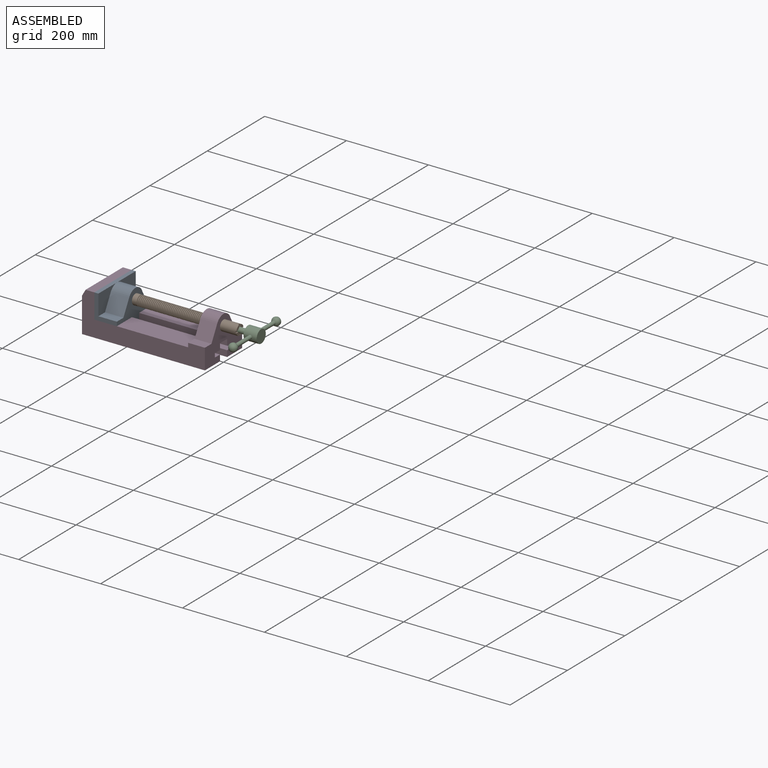
[diagram: assembled view]
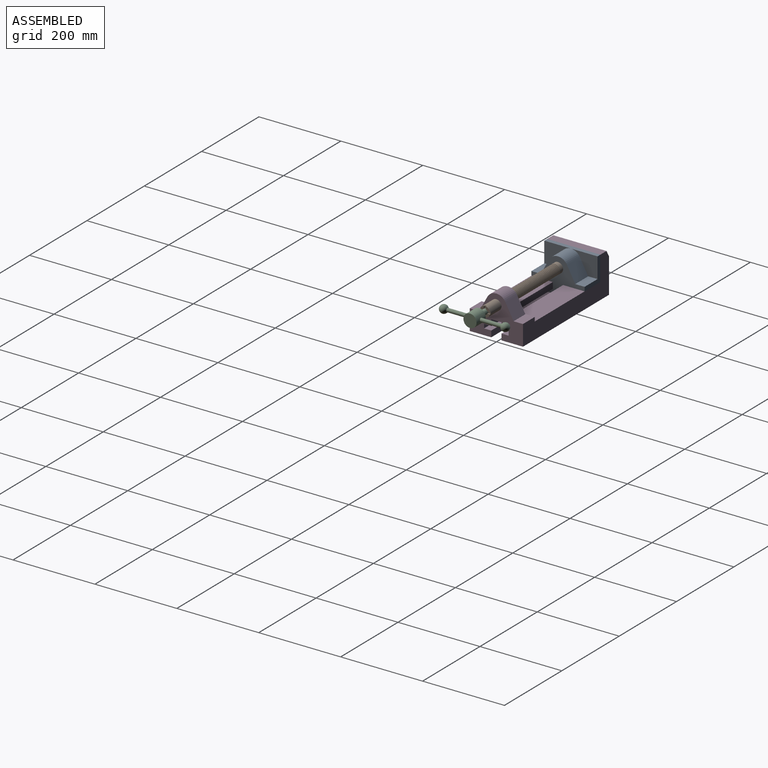
[diagram: assembled view, second angle]
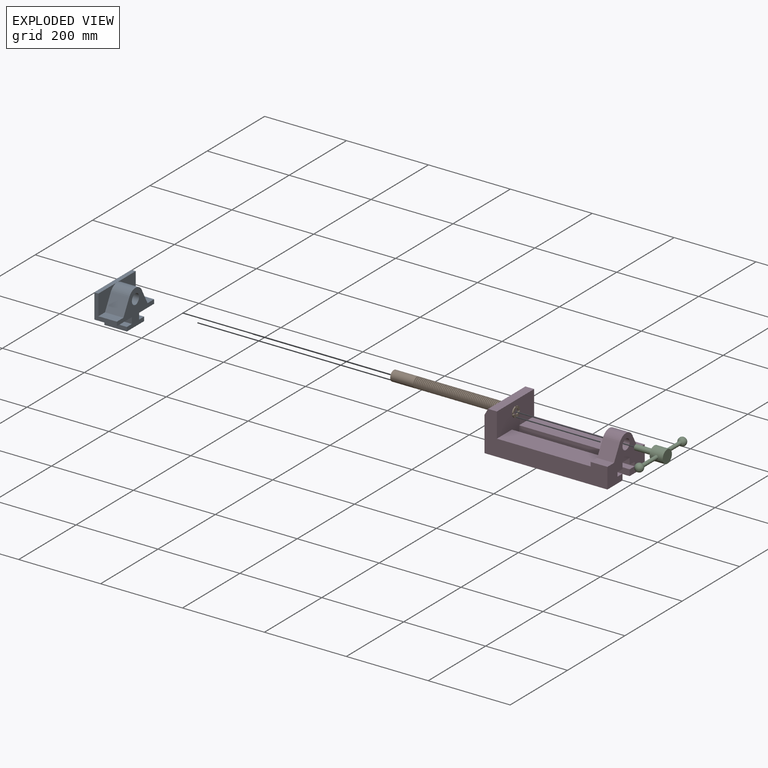
[diagram: exploded view]
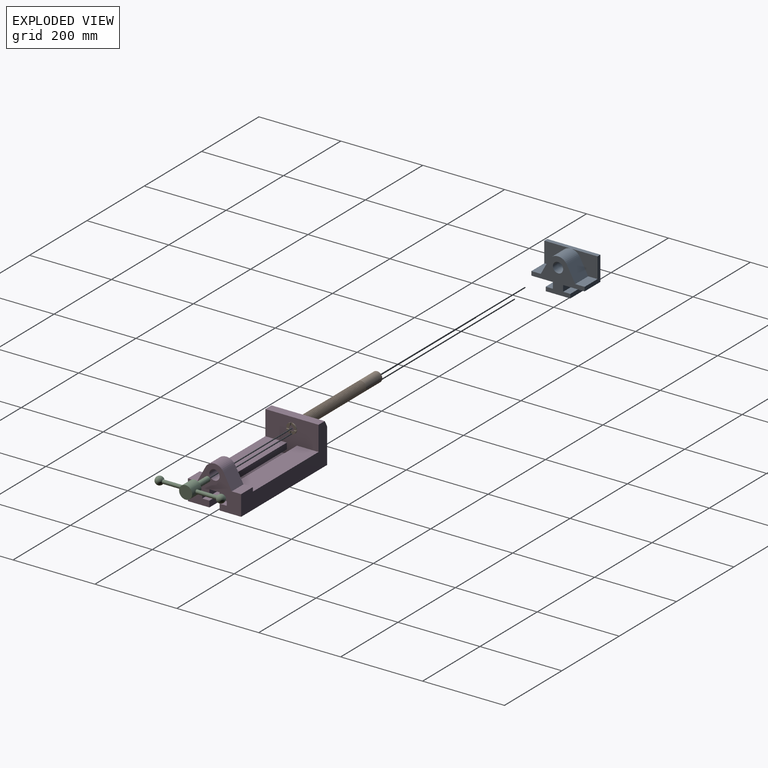
[diagram: exploded view, second angle]
ASSEMBLY  parts=4 mates=3
PART A: 23 faces, bbox 55x130x85 mm
  f0: plane 55x52.5mm, normal (0,0,-1), area 2887.5mm2, adj f4,f5,f10,f22
  f1: plane 45x22.94mm, normal (0,0,1), area 1032.3mm2, adj f2,f5,f7,f13
  f2: plane 65x50mm, normal (1,0,0), area 1863.3mm2, adj f1,f7,f9,f12,f13
  f3: plane 65x50mm, normal (1,0,0), area 1863.3mm2, adj f4,f6,f9,f11,f12
  f4: plane 60x55mm, normal (0,1,0), area 1050mm2, adj f0,f3,f5,f6,f9,f10
  f5: plane 130x85mm, normal (1,0,0), area 4557.5mm2, adj f0,f1,f4,f6,f7,f8,f11,f12
  f6: plane 45x22.94mm, normal (0,0,1), area 1032.3mm2, adj f3,f4,f5,f11
  f7: plane 60x55mm, normal (0,-1,0), area 1050mm2, adj f1,f2,f5,f8,f9,f10
  f8: plane 55x52.5mm, normal (0,0,-1), area 2887.5mm2, adj f5,f7,f10,f16
  f9: plane 130x10mm, normal (0,0,1), area 1300mm2, adj f2,f3,f4,f7,f10
  f10: plane 130x85mm, normal (-1,0,0), area 8775mm2, adj f0,f4,f7,f8,f9,f16,f17,f18
  f11: plane 45x36.95mm, normal (0,0.88,0.48), area 1892.7mm2, adj f3,f5,f6,f12
  f12: cylinder r=25mm len=45mm, axis (1,0,0), area 2413.3mm2, adj f2,f3,f5,f11,f13
  f13: plane 45x36.95mm, normal (0,-0.88,0.48), area 1892.7mm2, adj f1,f2,f5,f12
  f14: cylinder r=12.5mm len=45mm, axis (1,0,0), area 3534.3mm2, adj f5,f15
  f15: plane 25x25mm, normal (1,0,0), area 490.9mm2, adj f14
  f16: plane 55x15mm, normal (0,-1,0), area 825mm2, adj f5,f8,f10,f17
  f17: plane 55x17.5mm, normal (0,0,1), area 962.5mm2, adj f5,f10,f16,f18
  f18: plane 55x10mm, normal (0,-1,0), area 550mm2, adj f5,f10,f17,f19
  f19: plane 60x55mm, normal (0,0,-1), area 3300mm2, adj f5,f10,f18,f20
  f20: plane 55x10mm, normal (0,1,0), area 550mm2, adj f5,f10,f19,f21
  f21: plane 55x17.5mm, normal (0,0,1), area 962.5mm2, adj f5,f10,f20,f22
  f22: plane 55x15mm, normal (0,1,0), area 825mm2, adj f0,f5,f10,f21
PART B: 220 faces, bbox 300x25x25 mm
  f0: plane 9.75x9.75mm, normal (1,0,0), area 59.1mm2, adj f7,f210,f211,f218
  f1: plane 9.75x9.75mm, normal (1,0,0), area 59.1mm2, adj f7,f212,f213,f218
  f2: plane 9.75x9.75mm, normal (1,0,0), area 59.1mm2, adj f7,f214,f215,f218
  f3: plane 9.75x9.75mm, normal (1,0,0), area 59.1mm2, adj f7,f216,f217,f218
  f4: plane 6.5x5mm, normal (1,0,0), area 30.4mm2, adj f7,f210,f217,f218
  f5: plane 6.5x5mm, normal (1,0,0), area 30.4mm2, adj f7,f211,f212,f218
  f6: plane 6.5x5mm, normal (1,0,0), area 30.4mm2, adj f7,f213,f214,f218
  f7: cylinder r=12.5mm len=40mm, axis (-1,0,0), area 3091.3mm2, adj f0,f1,f2,f3,f4,f5,f6,f59
  f8: cylinder r=12.5mm len=25mm, axis (-1,0,0), area 125.7mm2, adj f201,f206
  f9: cylinder r=12.5mm len=25mm, axis (-1,0,0), area 125.7mm2, adj f198,f203
  f10: cylinder r=12.5mm len=25mm, axis (-1,0,0), area 125.7mm2, adj f195,f200
  f11: cylinder r=12.5mm len=25mm, axis (-1,0,0), area 125.7mm2, adj f192,f197
  f12: cylinder r=12.5mm len=25mm, axis (-1,0,0), area 125.7mm2, adj f189,f194
  f13: cylinder r=12.5mm len=25mm, axis (-1,0,0), area 125.7mm2, adj f186,f191
  f14: cylinder r=12.5mm len=25mm, axis (-1,0,0), area 125.7mm2, adj f183,f188
  f15: cylinder r=12.5mm len=25mm, axis (-1,0,0), area 125.7mm2, adj f180,f185
  f16: cylinder r=12.5mm len=25mm, axis (-1,0,0), area 125.7mm2, adj f177,f182
  f17: cylinder r=12.5mm len=25mm, axis (-1,0,0), area 125.7mm2, adj f174,f179
  f18: cylinder r=12.5mm len=25mm, axis (-1,0,0), area 125.7mm2, adj f171,f176
  f19: cylinder r=12.5mm len=25mm, axis (-1,0,0), area 125.7mm2, adj f168,f173
  f20: cylinder r=12.5mm len=25mm, axis (-1,0,0), area 125.7mm2, adj f165,f170
  f21: cylinder r=12.5mm len=25mm, axis (-1,0,0), area 125.7mm2, adj f162,f167
  f22: cylinder r=12.5mm len=25mm, axis (-1,0,0), area 125.7mm2, adj f159,f164
  f23: cylinder r=12.5mm len=25mm, axis (-1,0,0), area 125.7mm2, adj f156,f161
  f24: cylinder r=12.5mm len=25mm, axis (-1,0,0), area 125.7mm2, adj f153,f158
  f25: cylinder r=12.5mm len=25mm, axis (-1,0,0), area 125.7mm2, adj f150,f155
  f26: cylinder r=12.5mm len=25mm, axis (-1,0,0), area 125.7mm2, adj f147,f152
  f27: cylinder r=12.5mm len=25mm, axis (-1,0,0), area 125.7mm2, adj f144,f149
  f28: cylinder r=12.5mm len=25mm, axis (-1,0,0), area 125.7mm2, adj f141,f146
  f29: cylinder r=12.5mm len=25mm, axis (-1,0,0), area 125.7mm2, adj f138,f143
  f30: cylinder r=12.5mm len=25mm, axis (-1,0,0), area 125.7mm2, adj f135,f140
  f31: cylinder r=12.5mm len=25mm, axis (-1,0,0), area 125.7mm2, adj f132,f137
  f32: cylinder r=12.5mm len=25mm, axis (-1,0,0), area 125.7mm2, adj f129,f134
  f33: cylinder r=12.5mm len=25mm, axis (-1,0,0), area 125.7mm2, adj f126,f131
  f34: cylinder r=12.5mm len=25mm, axis (-1,0,0), area 125.7mm2, adj f123,f128
  f35: cylinder r=12.5mm len=25mm, axis (-1,0,0), area 125.7mm2, adj f120,f125
  f36: cylinder r=12.5mm len=25mm, axis (-1,0,0), area 125.7mm2, adj f117,f122
  f37: cylinder r=12.5mm len=25mm, axis (-1,0,0), area 125.7mm2, adj f114,f119
  f38: cylinder r=12.5mm len=25mm, axis (-1,0,0), area 125.7mm2, adj f111,f116
  f39: cylinder r=12.5mm len=25mm, axis (-1,0,0), area 125.7mm2, adj f108,f113
  f40: cylinder r=12.5mm len=25mm, axis (-1,0,0), area 125.7mm2, adj f105,f110
  f41: cylinder r=12.5mm len=25mm, axis (-1,0,0), area 125.7mm2, adj f102,f107
  f42: cylinder r=12.5mm len=25mm, axis (-1,0,0), area 125.7mm2, adj f99,f104
  f43: cylinder r=12.5mm len=25mm, axis (-1,0,0), area 125.7mm2, adj f96,f101
  f44: cylinder r=12.5mm len=25mm, axis (-1,0,0), area 125.7mm2, adj f93,f98
  f45: cylinder r=12.5mm len=25mm, axis (-1,0,0), area 125.7mm2, adj f90,f95
  f46: cylinder r=12.5mm len=25mm, axis (-1,0,0), area 125.7mm2, adj f87,f92
  f47: cylinder r=12.5mm len=25mm, axis (-1,0,0), area 125.7mm2, adj f84,f89
  f48: cylinder r=12.5mm len=25mm, axis (-1,0,0), area 125.7mm2, adj f81,f86
  f49: cylinder r=12.5mm len=25mm, axis (-1,0,0), area 125.7mm2, adj f78,f83
  f50: cylinder r=12.5mm len=25mm, axis (-1,0,0), area 125.7mm2, adj f75,f80
  f51: cylinder r=12.5mm len=25mm, axis (-1,0,0), area 125.7mm2, adj f72,f77
  f52: cylinder r=12.5mm len=25mm, axis (-1,0,0), area 125.7mm2, adj f69,f74
  f53: cylinder r=12.5mm len=25mm, axis (-1,0,0), area 125.7mm2, adj f66,f71
  f54: cylinder r=12.5mm len=25mm, axis (-1,0,0), area 125.7mm2, adj f63,f68
  f55: cylinder r=12.5mm len=25mm, axis (-1,0,0), area 125.7mm2, adj f60,f65
  f56: cylinder r=12.5mm len=25mm, axis (-1,0,0), area 125.7mm2, adj f57,f62
  f57: cone r=10mm half-angle=75.4deg, axis (-1,0,0), area 182.6mm2, adj f56,f58
  f58: cylinder r=10mm len=20mm, axis (-1,0,0), area 75.4mm2, adj f57,f59
  f59: cone r=12.5mm half-angle=75.4deg, axis (1,0,0), area 182.6mm2, adj f7,f58
  f60: cone r=10mm half-angle=75.4deg, axis (-1,0,0), area 182.6mm2, adj f55,f61
  f61: cylinder r=10mm len=20mm, axis (-1,0,0), area 75.4mm2, adj f60,f62
  f62: cone r=12.5mm half-angle=75.4deg, axis (1,0,0), area 182.6mm2, adj f56,f61
  f63: cone r=10mm half-angle=75.4deg, axis (-1,0,0), area 182.6mm2, adj f54,f64
  f64: cylinder r=10mm len=20mm, axis (-1,0,0), area 75.4mm2, adj f63,f65
  f65: cone r=12.5mm half-angle=75.4deg, axis (1,0,0), area 182.6mm2, adj f55,f64
  f66: cone r=10mm half-angle=75.4deg, axis (-1,0,0), area 182.6mm2, adj f53,f67
  f67: cylinder r=10mm len=20mm, axis (-1,0,0), area 75.4mm2, adj f66,f68
  f68: cone r=12.5mm half-angle=75.4deg, axis (1,0,0), area 182.6mm2, adj f54,f67
  f69: cone r=10mm half-angle=75.4deg, axis (-1,0,0), area 182.6mm2, adj f52,f70
  f70: cylinder r=10mm len=20mm, axis (-1,0,0), area 75.4mm2, adj f69,f71
  f71: cone r=12.5mm half-angle=75.4deg, axis (1,0,0), area 182.6mm2, adj f53,f70
  f72: cone r=10mm half-angle=75.4deg, axis (-1,0,0), area 182.6mm2, adj f51,f73
  f73: cylinder r=10mm len=20mm, axis (-1,0,0), area 75.4mm2, adj f72,f74
  f74: cone r=12.5mm half-angle=75.4deg, axis (1,0,0), area 182.6mm2, adj f52,f73
  f75: cone r=10mm half-angle=75.4deg, axis (-1,0,0), area 182.6mm2, adj f50,f76
  f76: cylinder r=10mm len=20mm, axis (-1,0,0), area 75.4mm2, adj f75,f77
  f77: cone r=12.5mm half-angle=75.4deg, axis (1,0,0), area 182.6mm2, adj f51,f76
  f78: cone r=10mm half-angle=75.4deg, axis (-1,0,0), area 182.6mm2, adj f49,f79
  f79: cylinder r=10mm len=20mm, axis (-1,0,0), area 75.4mm2, adj f78,f80
  f80: cone r=12.5mm half-angle=75.4deg, axis (1,0,0), area 182.6mm2, adj f50,f79
  f81: cone r=10mm half-angle=75.4deg, axis (-1,0,0), area 182.6mm2, adj f48,f82
  f82: cylinder r=10mm len=20mm, axis (-1,0,0), area 75.4mm2, adj f81,f83
  f83: cone r=12.5mm half-angle=75.4deg, axis (1,0,0), area 182.6mm2, adj f49,f82
  f84: cone r=10mm half-angle=75.4deg, axis (-1,0,0), area 182.6mm2, adj f47,f85
  f85: cylinder r=10mm len=20mm, axis (-1,0,0), area 75.4mm2, adj f84,f86
  f86: cone r=12.5mm half-angle=75.4deg, axis (1,0,0), area 182.6mm2, adj f48,f85
  f87: cone r=10mm half-angle=75.4deg, axis (-1,0,0), area 182.6mm2, adj f46,f88
  f88: cylinder r=10mm len=20mm, axis (-1,0,0), area 75.4mm2, adj f87,f89
  f89: cone r=12.5mm half-angle=75.4deg, axis (1,0,0), area 182.6mm2, adj f47,f88
  f90: cone r=10mm half-angle=75.4deg, axis (-1,0,0), area 182.6mm2, adj f45,f91
  f91: cylinder r=10mm len=20mm, axis (-1,0,0), area 75.4mm2, adj f90,f92
  f92: cone r=12.5mm half-angle=75.4deg, axis (1,0,0), area 182.6mm2, adj f46,f91
  f93: cone r=10mm half-angle=75.4deg, axis (-1,0,0), area 182.6mm2, adj f44,f94
  f94: cylinder r=10mm len=20mm, axis (-1,0,0), area 75.4mm2, adj f93,f95
  f95: cone r=12.5mm half-angle=75.4deg, axis (1,0,0), area 182.6mm2, adj f45,f94
  f96: cone r=10mm half-angle=75.4deg, axis (-1,0,0), area 182.6mm2, adj f43,f97
  f97: cylinder r=10mm len=20mm, axis (-1,0,0), area 75.4mm2, adj f96,f98
  f98: cone r=12.5mm half-angle=75.4deg, axis (1,0,0), area 182.6mm2, adj f44,f97
  f99: cone r=10mm half-angle=75.4deg, axis (-1,0,0), area 182.6mm2, adj f42,f100
  f100: cylinder r=10mm len=20mm, axis (-1,0,0), area 75.4mm2, adj f99,f101
  f101: cone r=12.5mm half-angle=75.4deg, axis (1,0,0), area 182.6mm2, adj f43,f100
  f102: cone r=10mm half-angle=75.4deg, axis (-1,0,0), area 182.6mm2, adj f41,f103
  f103: cylinder r=10mm len=20mm, axis (-1,0,0), area 75.4mm2, adj f102,f104
  f104: cone r=12.5mm half-angle=75.4deg, axis (1,0,0), area 182.6mm2, adj f42,f103
  f105: cone r=10mm half-angle=75.4deg, axis (-1,0,0), area 182.6mm2, adj f40,f106
  f106: cylinder r=10mm len=20mm, axis (-1,0,0), area 75.4mm2, adj f105,f107
  f107: cone r=12.5mm half-angle=75.4deg, axis (1,0,0), area 182.6mm2, adj f41,f106
  f108: cone r=10mm half-angle=75.4deg, axis (-1,0,0), area 182.6mm2, adj f39,f109
  f109: cylinder r=10mm len=20mm, axis (-1,0,0), area 75.4mm2, adj f108,f110
  f110: cone r=12.5mm half-angle=75.4deg, axis (1,0,0), area 182.6mm2, adj f40,f109
  f111: cone r=10mm half-angle=75.4deg, axis (-1,0,0), area 182.6mm2, adj f38,f112
  f112: cylinder r=10mm len=20mm, axis (-1,0,0), area 75.4mm2, adj f111,f113
  f113: cone r=12.5mm half-angle=75.4deg, axis (1,0,0), area 182.6mm2, adj f39,f112
  f114: cone r=10mm half-angle=75.4deg, axis (-1,0,0), area 182.6mm2, adj f37,f115
  f115: cylinder r=10mm len=20mm, axis (-1,0,0), area 75.4mm2, adj f114,f116
  f116: cone r=12.5mm half-angle=75.4deg, axis (1,0,0), area 182.6mm2, adj f38,f115
  f117: cone r=10mm half-angle=75.4deg, axis (-1,0,0), area 182.6mm2, adj f36,f118
  f118: cylinder r=10mm len=20mm, axis (-1,0,0), area 75.4mm2, adj f117,f119
  f119: cone r=12.5mm half-angle=75.4deg, axis (1,0,0), area 182.6mm2, adj f37,f118
  f120: cone r=10mm half-angle=75.4deg, axis (-1,0,0), area 182.6mm2, adj f35,f121
  f121: cylinder r=10mm len=20mm, axis (-1,0,0), area 75.4mm2, adj f120,f122
  f122: cone r=12.5mm half-angle=75.4deg, axis (1,0,0), area 182.6mm2, adj f36,f121
  f123: cone r=10mm half-angle=75.4deg, axis (-1,0,0), area 182.6mm2, adj f34,f124
  f124: cylinder r=10mm len=20mm, axis (-1,0,0), area 75.4mm2, adj f123,f125
  f125: cone r=12.5mm half-angle=75.4deg, axis (1,0,0), area 182.6mm2, adj f35,f124
  f126: cone r=10mm half-angle=75.4deg, axis (-1,0,0), area 182.6mm2, adj f33,f127
  f127: cylinder r=10mm len=20mm, axis (-1,0,0), area 75.4mm2, adj f126,f128
  f128: cone r=12.5mm half-angle=75.4deg, axis (1,0,0), area 182.6mm2, adj f34,f127
  f129: cone r=10mm half-angle=75.4deg, axis (-1,0,0), area 182.6mm2, adj f32,f130
  f130: cylinder r=10mm len=20mm, axis (-1,0,0), area 75.4mm2, adj f129,f131
  f131: cone r=12.5mm half-angle=75.4deg, axis (1,0,0), area 182.6mm2, adj f33,f130
  f132: cone r=10mm half-angle=75.4deg, axis (-1,0,0), area 182.6mm2, adj f31,f133
  f133: cylinder r=10mm len=20mm, axis (-1,0,0), area 75.4mm2, adj f132,f134
  f134: cone r=12.5mm half-angle=75.4deg, axis (1,0,0), area 182.6mm2, adj f32,f133
  f135: cone r=10mm half-angle=75.4deg, axis (-1,0,0), area 182.6mm2, adj f30,f136
  f136: cylinder r=10mm len=20mm, axis (-1,0,0), area 75.4mm2, adj f135,f137
  f137: cone r=12.5mm half-angle=75.4deg, axis (1,0,0), area 182.6mm2, adj f31,f136
  f138: cone r=10mm half-angle=75.4deg, axis (-1,0,0), area 182.6mm2, adj f29,f139
  f139: cylinder r=10mm len=20mm, axis (-1,0,0), area 75.4mm2, adj f138,f140
  f140: cone r=12.5mm half-angle=75.4deg, axis (1,0,0), area 182.6mm2, adj f30,f139
  f141: cone r=10mm half-angle=75.4deg, axis (-1,0,0), area 182.6mm2, adj f28,f142
  f142: cylinder r=10mm len=20mm, axis (-1,0,0), area 75.4mm2, adj f141,f143
  f143: cone r=12.5mm half-angle=75.4deg, axis (1,0,0), area 182.6mm2, adj f29,f142
  f144: cone r=10mm half-angle=75.4deg, axis (-1,0,0), area 182.6mm2, adj f27,f145
  f145: cylinder r=10mm len=20mm, axis (-1,0,0), area 75.4mm2, adj f144,f146
  f146: cone r=12.5mm half-angle=75.4deg, axis (1,0,0), area 182.6mm2, adj f28,f145
  f147: cone r=10mm half-angle=75.4deg, axis (-1,0,0), area 182.6mm2, adj f26,f148
  f148: cylinder r=10mm len=20mm, axis (-1,0,0), area 75.4mm2, adj f147,f149
  f149: cone r=12.5mm half-angle=75.4deg, axis (1,0,0), area 182.6mm2, adj f27,f148
  f150: cone r=10mm half-angle=75.4deg, axis (-1,0,0), area 182.6mm2, adj f25,f151
  f151: cylinder r=10mm len=20mm, axis (-1,0,0), area 75.4mm2, adj f150,f152
  f152: cone r=12.5mm half-angle=75.4deg, axis (1,0,0), area 182.6mm2, adj f26,f151
  f153: cone r=10mm half-angle=75.4deg, axis (-1,0,0), area 182.6mm2, adj f24,f154
  f154: cylinder r=10mm len=20mm, axis (-1,0,0), area 75.4mm2, adj f153,f155
  f155: cone r=12.5mm half-angle=75.4deg, axis (1,0,0), area 182.6mm2, adj f25,f154
  f156: cone r=10mm half-angle=75.4deg, axis (-1,0,0), area 182.6mm2, adj f23,f157
  f157: cylinder r=10mm len=20mm, axis (-1,0,0), area 75.4mm2, adj f156,f158
  f158: cone r=12.5mm half-angle=75.4deg, axis (1,0,0), area 182.6mm2, adj f24,f157
  f159: cone r=10mm half-angle=75.4deg, axis (-1,0,0), area 182.6mm2, adj f22,f160
  f160: cylinder r=10mm len=20mm, axis (-1,0,0), area 75.4mm2, adj f159,f161
  f161: cone r=12.5mm half-angle=75.4deg, axis (1,0,0), area 182.6mm2, adj f23,f160
  f162: cone r=10mm half-angle=75.4deg, axis (-1,0,0), area 182.6mm2, adj f21,f163
  f163: cylinder r=10mm len=20mm, axis (-1,0,0), area 75.4mm2, adj f162,f164
  f164: cone r=12.5mm half-angle=75.4deg, axis (1,0,0), area 182.6mm2, adj f22,f163
  f165: cone r=10mm half-angle=75.4deg, axis (-1,0,0), area 182.6mm2, adj f20,f166
  f166: cylinder r=10mm len=20mm, axis (-1,0,0), area 75.4mm2, adj f165,f167
  f167: cone r=12.5mm half-angle=75.4deg, axis (1,0,0), area 182.6mm2, adj f21,f166
  f168: cone r=10mm half-angle=75.4deg, axis (-1,0,0), area 182.6mm2, adj f19,f169
  f169: cylinder r=10mm len=20mm, axis (-1,0,0), area 75.4mm2, adj f168,f170
  f170: cone r=12.5mm half-angle=75.4deg, axis (1,0,0), area 182.6mm2, adj f20,f169
  f171: cone r=10mm half-angle=75.4deg, axis (-1,0,0), area 182.6mm2, adj f18,f172
  f172: cylinder r=10mm len=20mm, axis (-1,0,0), area 75.4mm2, adj f171,f173
  f173: cone r=12.5mm half-angle=75.4deg, axis (1,0,0), area 182.6mm2, adj f19,f172
  f174: cone r=10mm half-angle=75.4deg, axis (-1,0,0), area 182.6mm2, adj f17,f175
  f175: cylinder r=10mm len=20mm, axis (-1,0,0), area 75.4mm2, adj f174,f176
  f176: cone r=12.5mm half-angle=75.4deg, axis (1,0,0), area 182.6mm2, adj f18,f175
  f177: cone r=10mm half-angle=75.4deg, axis (-1,0,0), area 182.6mm2, adj f16,f178
  f178: cylinder r=10mm len=20mm, axis (-1,0,0), area 75.4mm2, adj f177,f179
  f179: cone r=12.5mm half-angle=75.4deg, axis (1,0,0), area 182.6mm2, adj f17,f178
  f180: cone r=10mm half-angle=75.4deg, axis (-1,0,0), area 182.6mm2, adj f15,f181
  f181: cylinder r=10mm len=20mm, axis (-1,0,0), area 75.4mm2, adj f180,f182
  f182: cone r=12.5mm half-angle=75.4deg, axis (1,0,0), area 182.6mm2, adj f16,f181
  f183: cone r=10mm half-angle=75.4deg, axis (-1,0,0), area 182.6mm2, adj f14,f184
  f184: cylinder r=10mm len=20mm, axis (-1,0,0), area 75.4mm2, adj f183,f185
  f185: cone r=12.5mm half-angle=75.4deg, axis (1,0,0), area 182.6mm2, adj f15,f184
  f186: cone r=10mm half-angle=75.4deg, axis (-1,0,0), area 182.6mm2, adj f13,f187
  f187: cylinder r=10mm len=20mm, axis (-1,0,0), area 75.4mm2, adj f186,f188
  f188: cone r=12.5mm half-angle=75.4deg, axis (1,0,0), area 182.6mm2, adj f14,f187
  f189: cone r=10mm half-angle=75.4deg, axis (-1,0,0), area 182.6mm2, adj f12,f190
  f190: cylinder r=10mm len=20mm, axis (-1,0,0), area 75.4mm2, adj f189,f191
  f191: cone r=12.5mm half-angle=75.4deg, axis (1,0,0), area 182.6mm2, adj f13,f190
  f192: cone r=10mm half-angle=75.4deg, axis (-1,0,0), area 182.6mm2, adj f11,f193
  f193: cylinder r=10mm len=20mm, axis (-1,0,0), area 75.4mm2, adj f192,f194
  f194: cone r=12.5mm half-angle=75.4deg, axis (1,0,0), area 182.6mm2, adj f12,f193
  f195: cone r=10mm half-angle=75.4deg, axis (-1,0,0), area 182.6mm2, adj f10,f196
  f196: cylinder r=10mm len=20mm, axis (-1,0,0), area 75.4mm2, adj f195,f197
  f197: cone r=12.5mm half-angle=75.4deg, axis (1,0,0), area 182.6mm2, adj f11,f196
  f198: cone r=10mm half-angle=75.4deg, axis (-1,0,0), area 182.6mm2, adj f9,f199
  f199: cylinder r=10mm len=20mm, axis (-1,0,0), area 75.4mm2, adj f198,f200
  f200: cone r=12.5mm half-angle=75.4deg, axis (1,0,0), area 182.6mm2, adj f10,f199
  f201: cone r=10mm half-angle=75.4deg, axis (-1,0,0), area 182.6mm2, adj f8,f202
  f202: cylinder r=10mm len=20mm, axis (-1,0,0), area 75.4mm2, adj f201,f203
  f203: cone r=12.5mm half-angle=75.4deg, axis (1,0,0), area 182.6mm2, adj f9,f202
  f204: cone r=10mm half-angle=75.4deg, axis (-1,0,0), area 182.6mm2, adj f205,f208
  f205: cylinder r=10mm len=20mm, axis (-1,0,0), area 75.4mm2, adj f204,f206
  f206: cone r=12.5mm half-angle=75.4deg, axis (1,0,0), area 182.6mm2, adj f8,f205
  f207: plane 25x25mm, normal (-1,0,0), area 490.9mm2, adj f208
  f208: cylinder r=12.5mm len=56.6mm, axis (-1,0,0), area 4445.4mm2, adj f204,f207
  f209: plane 6.5x5mm, normal (1,0,0), area 30.4mm2, adj f7,f215,f216,f218
  f210: plane 6.25x2.5mm, normal (0,0,-1), area 15.6mm2, adj f0,f4,f7,f218
  f211: plane 6.25x2.5mm, normal (0,-1,0), area 15.6mm2, adj f0,f5,f7,f218
  f212: plane 6.25x2.5mm, normal (0,1,0), area 15.6mm2, adj f1,f5,f7,f218
  f213: plane 6.25x2.5mm, normal (0,0,-1), area 15.6mm2, adj f1,f6,f7,f218
  f214: plane 6.25x2.5mm, normal (0,0,1), area 15.6mm2, adj f2,f6,f7,f218
  f215: plane 6.25x2.5mm, normal (0,1,0), area 15.6mm2, adj f2,f7,f209,f218
  f216: plane 6.25x2.5mm, normal (0,-1,0), area 15.6mm2, adj f3,f7,f209,f218
  f217: plane 6.25x2.5mm, normal (0,0,1), area 15.6mm2, adj f3,f4,f7,f218
  f218: cylinder r=6.5mm len=25mm, axis (1,0,0), area 969.7mm2, adj f0,f1,f2,f3,f4,f5,f6,f209
  f219: plane 13x13mm, normal (1,0,0), area 132.7mm2, adj f218
PART C: 9 faces, bbox 77x170x32 mm
  f0: cylinder r=4.5mm len=50.72mm, axis (0,1,0), area 1424.8mm2, adj f2,f8
  f1: cylinder r=4.5mm len=50.72mm, axis (0,1,0), area 1424.8mm2, adj f2,f7
  f2: cylinder r=16mm len=32mm, axis (-1,0,0), area 3088.5mm2, adj f0,f1,f5,f6
  f3: cylinder r=6.5mm len=45mm, axis (-1,0,0), area 1837.8mm2, adj f4,f6
  f4: plane 13x13mm, normal (-1,0,0), area 132.7mm2, adj f3
  f5: plane 32x32mm, normal (1,0,0), area 804.2mm2, adj f2
  f6: plane 32x32mm, normal (-1,0,0), area 671.5mm2, adj f2,f3
  f7: sphere r=10mm, area 1189.4mm2, adj f1
  f8: sphere r=10mm, area 1189.4mm2, adj f0
PART D: 28 faces, bbox 300x130x100 mm
  f0: plane 300x130mm, normal (0,0,-1), area 32250mm2, adj f1,f3,f5,f7,f8,f26,f27
  f1: plane 130x100mm, normal (1,0,0), area 7432.5mm2, adj f0,f7,f8,f10,f11,f12,f13,f14
  f2: plane 229x52.5mm, normal (0,0,1), area 12022.5mm2, adj f5,f7,f16,f22
  f3: plane 130x85mm, normal (-1,0,0), area 11050mm2, adj f0,f7,f8,f9
  f4: plane 229x52.5mm, normal (0,0,1), area 12022.5mm2, adj f5,f8,f16,f20
  f5: plane 130x100mm, normal (1,0,0), area 9150mm2, adj f0,f2,f4,f6,f7,f8,f17,f18
  f6: plane 130x21.34mm, normal (0,0,1), area 2774.2mm2, adj f5,f7,f8,f9
  f7: plane 300x100mm, normal (0,-1,0), area 14145mm2, adj f0,f1,f2,f3,f5,f6,f9,f10
  f8: plane 300x100mm, normal (0,1,0), area 14145mm2, adj f0,f1,f3,f4,f5,f6,f9,f11
  f9: plane 130x15mm, normal (-0.87,0,0.5), area 2251.7mm2, adj f3,f6,f7,f8
  f10: plane 41x22.94mm, normal (0,0,1), area 940.5mm2, adj f1,f7,f15,f16
  f11: plane 41x22.94mm, normal (0,0,1), area 940.5mm2, adj f1,f8,f12,f16
  f12: plane 41x36.95mm, normal (0,0.88,0.48), area 1724.5mm2, adj f1,f11,f13,f16
  f13: cylinder r=25mm len=43.92mm, axis (1,0,0), area 2198.8mm2, adj f1,f12,f15,f16
  f14: cylinder r=12.5mm len=41mm, axis (1,0,0), area 3220.1mm2, adj f1,f16
  f15: plane 41x36.95mm, normal (0,-0.88,0.48), area 1724.5mm2, adj f1,f10,f13,f16
  f16: plane 130x60mm, normal (-1,0,0), area 3582.5mm2, adj f2,f4,f7,f8,f10,f11,f12,f13
  f17: plane 270x17.5mm, normal (0,0,1), area 4725mm2, adj f1,f5,f18,f27
  f18: plane 270x10mm, normal (0,-1,0), area 2700mm2, adj f1,f5,f17,f19
  f19: plane 270x17.5mm, normal (0,0,-1), area 4725mm2, adj f1,f5,f18,f20
  f20: plane 270x15mm, normal (0,-1,0), area 4050mm2, adj f1,f4,f5,f19,f21
  f21: plane 41x25mm, normal (0,0,-1), area 1025mm2, adj f1,f16,f20,f22
  f22: plane 270x15mm, normal (0,1,0), area 4050mm2, adj f1,f2,f5,f21,f23
  f23: plane 270x17.5mm, normal (0,0,-1), area 4725mm2, adj f1,f5,f22,f24
  f24: plane 270x10mm, normal (0,1,0), area 2700mm2, adj f1,f5,f23,f25
  f25: plane 270x17.5mm, normal (0,0,1), area 4725mm2, adj f1,f5,f24,f26
  f26: plane 270x15mm, normal (0,1,0), area 4050mm2, adj f0,f1,f5,f25
  f27: plane 270x15mm, normal (0,-1,0), area 4050mm2, adj f0,f1,f5,f17
PLACE A at identity
PLACE B rot(axis=(1,0,0),0deg) t=(0,0,0)mm
PLACE C rot(axis=(1,0,0),0deg) t=(0,0,0)mm
PLACE D at identity fixed
MATE slider A.f10 <-> D.f5  axis (1,0,0) through (-270,-65,40)mm
MATE fastened C.f3 <-> B.f205  axis (-1,0,0) through (15,0,75)mm
MATE revolute B.f58 <-> A.f12  axis (-1,0,0) through (-260,0,75)mm
